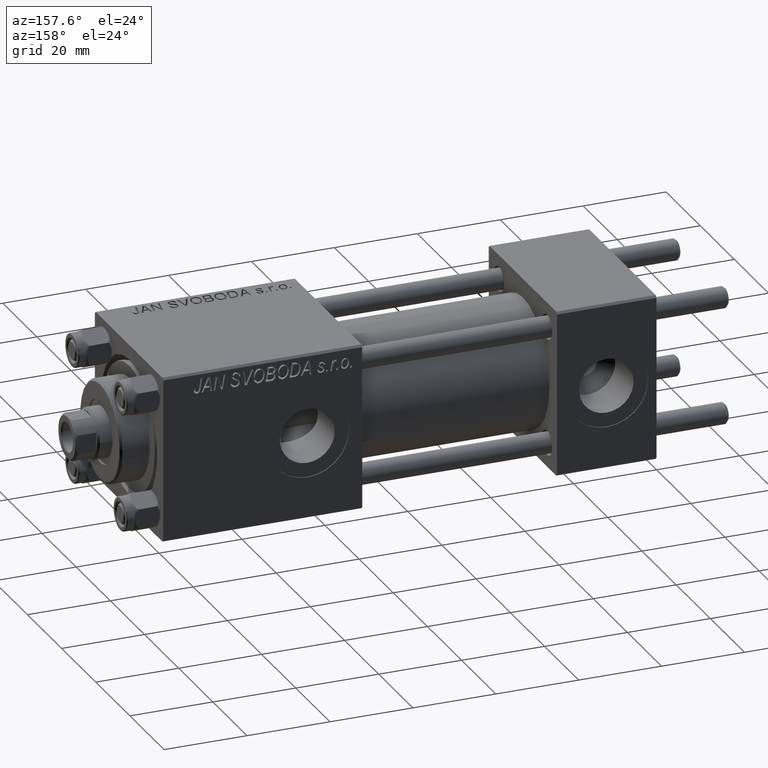
[diagram: clean part render]
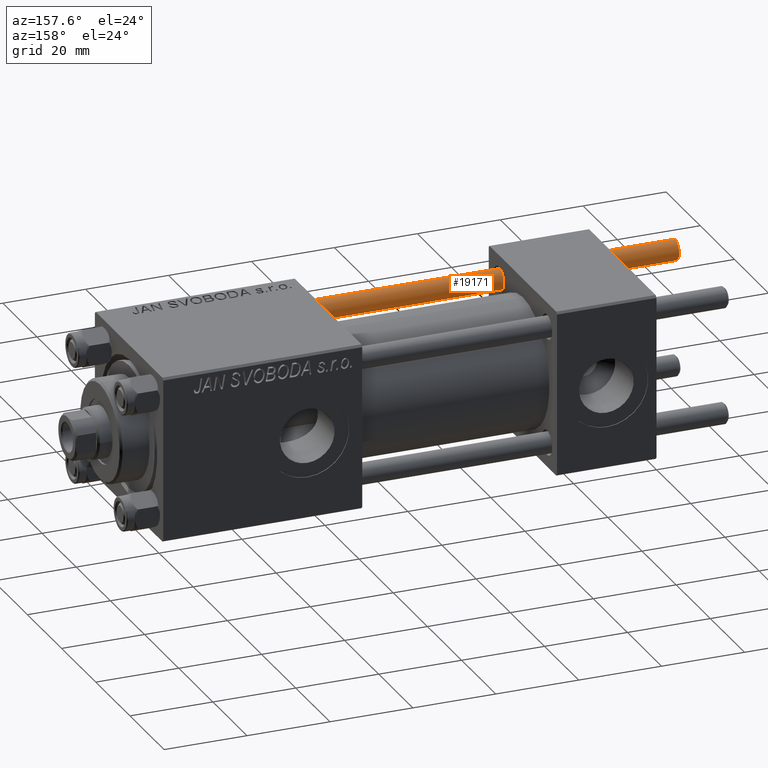
[diagram: same view with one face highlighted and labeled with its STEP entity id]
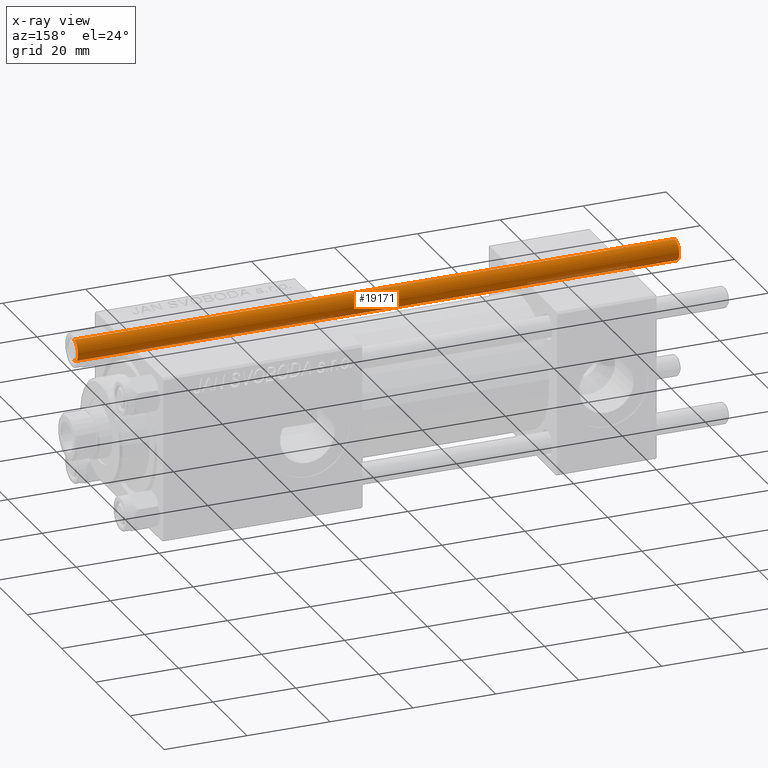
[diagram: x-ray of the same camera — body ghosted, the highlighted face saturated]
A machine part, auxiliary view. The second image highlights one B-rep face of the part: STEP entity #19171.
The next image is the same camera in x-ray: the body ghosted, the highlighted face saturated — about 5% of this face is hidden behind the body in this view.
In plain terms, the highlighted cylindrical surface (edge-blend (fillet) strip) has radius 2.5 mm, axis along (1, -0, 0).
Its self-contained STEP definition (entity closure, byte-faithful):
#840 = FACE_OUTER_BOUND ( 'NONE', #49313, .T. ) ;
#2295 = VECTOR ( 'NONE', #37269, 1000.000000000000000 ) ;
#10072 = VERTEX_POINT ( 'NONE', #46166 ) ;
#10318 = EDGE_CURVE ( 'NONE', #22378, #30867, #39599, .T. ) ;
#10542 = CARTESIAN_POINT ( 'NONE',  ( 0.000000000000000000, 0.000000000000000000, 0.5000000000000559552 ) ) ;
#14842 = DIRECTION ( 'NONE',  ( -1.000000000000000000, 0.000000000000000000, 0.000000000000000000 ) ) ;
#15222 = AXIS2_PLACEMENT_3D ( 'NONE', #10542, #45303, #29924 ) ;
#16195 = CARTESIAN_POINT ( 'NONE',  ( 2.500000000000000000, 3.061616997868383141E-16, 0.5000000000000559552 ) ) ;
#19171 = ADVANCED_FACE ( 'NONE', ( #840 ), #31278, .T. ) ;
#20076 = CARTESIAN_POINT ( 'NONE',  ( -2.500000000000000000, 0.000000000000000000, 0.5000000000000559552 ) ) ;
#20192 = CARTESIAN_POINT ( 'NONE',  ( 2.500000000000000000, 3.061616997868383141E-16, 146.0000000000000000 ) ) ;
#20535 = CARTESIAN_POINT ( 'NONE',  ( 0.000000000000000000, 0.000000000000000000, 145.5000000000000284 ) ) ;
#22378 = VERTEX_POINT ( 'NONE', #39868 ) ;
#23143 = EDGE_CURVE ( 'NONE', #22378, #10072, #37447, .T. ) ;
#28473 = AXIS2_PLACEMENT_3D ( 'NONE', #49698, #33988, #14842 ) ;
#29514 = ORIENTED_EDGE ( 'NONE', *, *, #41543, .T. ) ;
#29924 = DIRECTION ( 'NONE',  ( 1.000000000000000000, 0.000000000000000000, 0.000000000000000000 ) ) ;
#30867 = VERTEX_POINT ( 'NONE', #16195 ) ;
#31278 = CYLINDRICAL_SURFACE ( 'NONE', #28473, 2.500000000000000000 ) ;
#32806 = ORIENTED_EDGE ( 'NONE', *, *, #23143, .T. ) ;
#33988 = DIRECTION ( 'NONE',  ( -0.000000000000000000, -0.000000000000000000, -1.000000000000000000 ) ) ;
#36052 = DIRECTION ( 'NONE',  ( -0.000000000000000000, -0.000000000000000000, -1.000000000000000000 ) ) ;
#37269 = DIRECTION ( 'NONE',  ( -0.000000000000000000, -0.000000000000000000, -1.000000000000000000 ) ) ;
#37447 = CIRCLE ( 'NONE', #39065, 2.500000000000000000 ) ;
#37739 = ORIENTED_EDGE ( 'NONE', *, *, #44781, .T. ) ;
#38643 = ORIENTED_EDGE ( 'NONE', *, *, #10318, .F. ) ;
#39065 = AXIS2_PLACEMENT_3D ( 'NONE', #20535, #47261, #43477 ) ;
#39599 = LINE ( 'NONE', #20192, #41871 ) ;
#39868 = CARTESIAN_POINT ( 'NONE',  ( 2.500000000000000000, 3.061616997868383141E-16, 145.5000000000000284 ) ) ;
#40987 = CIRCLE ( 'NONE', #15222, 2.500000000000000000 ) ;
#41543 = EDGE_CURVE ( 'NONE', #10072, #41691, #44579, .T. ) ;
#41691 = VERTEX_POINT ( 'NONE', #20076 ) ;
#41871 = VECTOR ( 'NONE', #36052, 1000.000000000000000 ) ;
#43477 = DIRECTION ( 'NONE',  ( 1.000000000000000000, 0.000000000000000000, 0.000000000000000000 ) ) ;
#44579 = LINE ( 'NONE', #48114, #2295 ) ;
#44781 = EDGE_CURVE ( 'NONE', #41691, #30867, #40987, .T. ) ;
#45303 = DIRECTION ( 'NONE',  ( -0.000000000000000000, -0.000000000000000000, 1.000000000000000000 ) ) ;
#46166 = CARTESIAN_POINT ( 'NONE',  ( -2.500000000000000000, 0.000000000000000000, 145.5000000000000284 ) ) ;
#47261 = DIRECTION ( 'NONE',  ( 0.000000000000000000, 0.000000000000000000, -1.000000000000000000 ) ) ;
#48114 = CARTESIAN_POINT ( 'NONE',  ( -2.500000000000000000, 0.000000000000000000, 146.0000000000000000 ) ) ;
#49313 = EDGE_LOOP ( 'NONE', ( #38643, #32806, #29514, #37739 ) ) ;
#49698 = CARTESIAN_POINT ( 'NONE',  ( 0.000000000000000000, 0.000000000000000000, 146.0000000000000000 ) ) ;